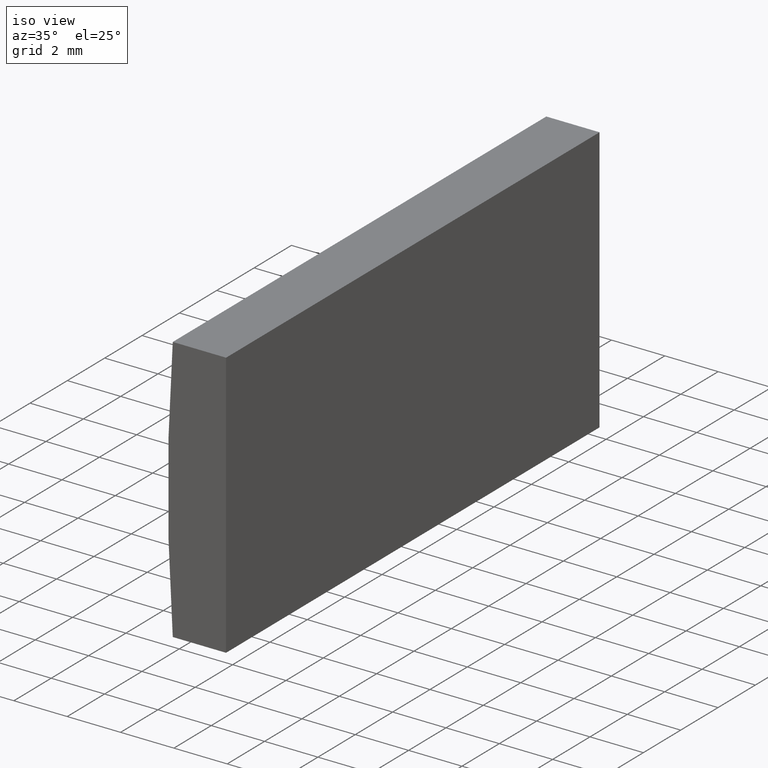
[diagram: clean part render]
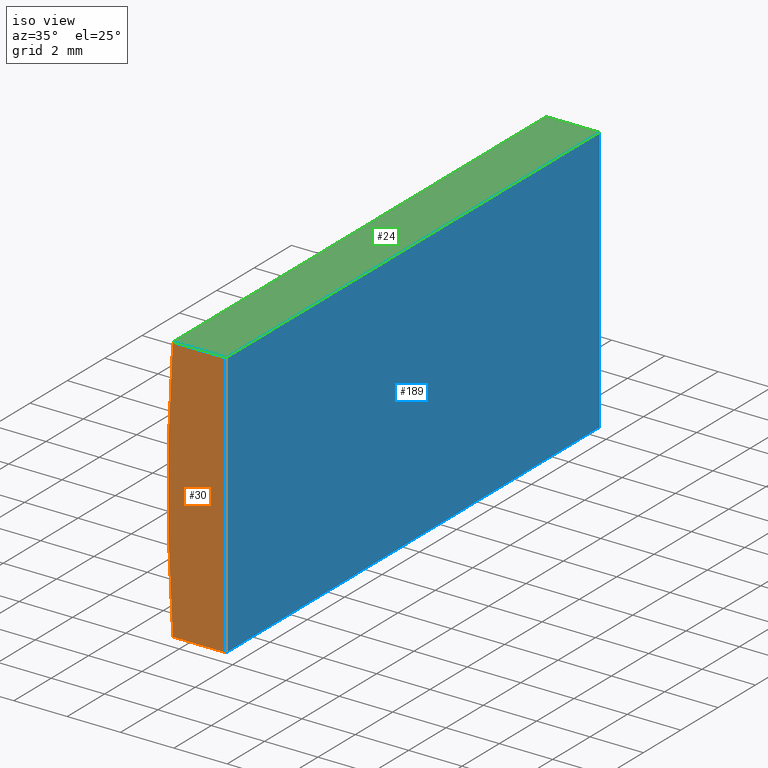
[diagram: same view with three faces highlighted in distinct colors, each labeled with its STEP entity id]
A machine part, iso view with three faces highlighted in distinct colors.
Their STEP definitions:

[orange] entity #30 — the highlighted planar face has unit normal (0, 1, 0).
#3 = CARTESIAN_POINT ( 'NONE',  ( -62.24479566514875000, 0.0000000000000000000, 5.000000000000000000 ) ) ;
#6 = DIRECTION ( 'NONE',  ( -1.000000000000000000, -0.0000000000000000000, 8.682211121010675500E-016 ) ) ;
#9 = AXIS2_PLACEMENT_3D ( 'NONE', #69, #173, #154 ) ;
#11 = VECTOR ( 'NONE', #160, 1000.000000000000000 ) ;
#14 = DIRECTION ( 'NONE',  ( 0.0000000000000000000, -0.0000000000000000000, 1.000000000000000000 ) ) ;
#17 = VECTOR ( 'NONE', #6, 1000.000000000000000 ) ;
#18 = CARTESIAN_POINT ( 'NONE',  ( -62.24479566514875000, 0.0000000000000000000, -5.000000000000001800 ) ) ;
#19 = LINE ( 'NONE', #131, #17 ) ;
#25 = VERTEX_POINT ( 'NONE', #3 ) ;
#30 = ADVANCED_FACE ( 'NONE', ( #145 ), #48, .F. ) ;
#31 = DIRECTION ( 'NONE',  ( 1.000000000000000000, 0.0000000000000000000, 0.0000000000000000000 ) ) ;
#39 = CARTESIAN_POINT ( 'NONE',  ( -64.24281604474863600, 0.0000000000000000000, 5.000000000000000000 ) ) ;
#40 = LINE ( 'NONE', #165, #184 ) ;
#48 = PLANE ( 'NONE',  #203 ) ;
#52 = ORIENTED_EDGE ( 'NONE', *, *, #87, .F. ) ;
#69 = CARTESIAN_POINT ( 'NONE',  ( 4.355204334851265500, 0.0000000000000000000, 4.286263797015675000E-017 ) ) ;
#86 = ORIENTED_EDGE ( 'NONE', *, *, #151, .F. ) ;
#87 = EDGE_CURVE ( 'NONE', #99, #25, #40, .T. ) ;
#90 = EDGE_CURVE ( 'NONE', #25, #123, #170, .T. ) ;
#92 = DIRECTION ( 'NONE',  ( 0.0000000000000000000, 1.000000000000000000, 0.0000000000000000000 ) ) ;
#99 = VERTEX_POINT ( 'NONE', #39 ) ;
#112 = CIRCLE ( 'NONE', #9, 68.78000000000000100 ) ;
#115 = ORIENTED_EDGE ( 'NONE', *, *, #172, .F. ) ;
#123 = VERTEX_POINT ( 'NONE', #197 ) ;
#131 = CARTESIAN_POINT ( 'NONE',  ( -64.24281604474863600, 0.0000000000000000000, -5.000000000000000000 ) ) ;
#133 = CARTESIAN_POINT ( 'NONE',  ( -64.24281604474863600, 0.0000000000000000000, -5.000000000000000000 ) ) ;
#145 = FACE_OUTER_BOUND ( 'NONE', #178, .T. ) ;
#151 = EDGE_CURVE ( 'NONE', #161, #99, #112, .T. ) ;
#154 = DIRECTION ( 'NONE',  ( 0.0000000000000000000, 0.0000000000000000000, 1.000000000000000000 ) ) ;
#160 = DIRECTION ( 'NONE',  ( -0.0000000000000000000, -0.0000000000000000000, -1.000000000000000000 ) ) ;
#161 = VERTEX_POINT ( 'NONE', #133 ) ;
#165 = CARTESIAN_POINT ( 'NONE',  ( -64.24281604474863600, 0.0000000000000000000, 5.000000000000000000 ) ) ;
#169 = ORIENTED_EDGE ( 'NONE', *, *, #90, .F. ) ;
#170 = LINE ( 'NONE', #18, #11 ) ;
#172 = EDGE_CURVE ( 'NONE', #123, #161, #19, .T. ) ;
#173 = DIRECTION ( 'NONE',  ( 0.0000000000000000000, 1.000000000000000000, 0.0000000000000000000 ) ) ;
#178 = EDGE_LOOP ( 'NONE', ( #86, #115, #169, #52 ) ) ;
#184 = VECTOR ( 'NONE', #31, 1000.000000000000000 ) ;
#195 = CARTESIAN_POINT ( 'NONE',  ( 4.355204334851265500, 0.0000000000000000000, 4.286263797015675000E-017 ) ) ;
#197 = CARTESIAN_POINT ( 'NONE',  ( -62.24479566514875000, 0.0000000000000000000, -5.000000000000001800 ) ) ;
#203 = AXIS2_PLACEMENT_3D ( 'NONE', #195, #92, #14 ) ;

[blue] entity #189 — the highlighted planar face has unit normal (-1, 0, 0).
#3 = CARTESIAN_POINT ( 'NONE',  ( -62.24479566514875000, 0.0000000000000000000, 5.000000000000000000 ) ) ;
#5 = DIRECTION ( 'NONE',  ( 0.0000000000000000000, 0.0000000000000000000, 1.000000000000000000 ) ) ;
#7 = DIRECTION ( 'NONE',  ( -0.0000000000000000000, -0.0000000000000000000, -1.000000000000000000 ) ) ;
#10 = LINE ( 'NONE', #61, #32 ) ;
#11 = VECTOR ( 'NONE', #160, 1000.000000000000000 ) ;
#16 = EDGE_CURVE ( 'NONE', #162, #123, #198, .T. ) ;
#18 = CARTESIAN_POINT ( 'NONE',  ( -62.24479566514875000, 0.0000000000000000000, -5.000000000000001800 ) ) ;
#23 = ORIENTED_EDGE ( 'NONE', *, *, #64, .T. ) ;
#25 = VERTEX_POINT ( 'NONE', #3 ) ;
#32 = VECTOR ( 'NONE', #59, 1000.000000000000000 ) ;
#34 = CARTESIAN_POINT ( 'NONE',  ( -62.24479566514875000, 20.00000000000000000, -5.000000000000001800 ) ) ;
#59 = DIRECTION ( 'NONE',  ( -0.0000000000000000000, -1.000000000000000000, -0.0000000000000000000 ) ) ;
#60 = EDGE_LOOP ( 'NONE', ( #204, #114, #202, #23 ) ) ;
#61 = CARTESIAN_POINT ( 'NONE',  ( -62.24479566514875000, 20.00000000000000000, 5.000000000000000000 ) ) ;
#64 = EDGE_CURVE ( 'NONE', #126, #25, #10, .T. ) ;
#65 = LINE ( 'NONE', #82, #105 ) ;
#77 = CARTESIAN_POINT ( 'NONE',  ( -62.24479566514875000, 20.00000000000000000, -5.000000000000001800 ) ) ;
#82 = CARTESIAN_POINT ( 'NONE',  ( -62.24479566514875000, 20.00000000000000000, -5.000000000000001800 ) ) ;
#85 = CARTESIAN_POINT ( 'NONE',  ( -62.24479566514875000, 20.00000000000000000, -5.000000000000001800 ) ) ;
#89 = DIRECTION ( 'NONE',  ( -1.000000000000000000, 0.0000000000000000000, 0.0000000000000000000 ) ) ;
#90 = EDGE_CURVE ( 'NONE', #25, #123, #170, .T. ) ;
#94 = AXIS2_PLACEMENT_3D ( 'NONE', #77, #89, #5 ) ;
#105 = VECTOR ( 'NONE', #7, 1000.000000000000000 ) ;
#111 = VECTOR ( 'NONE', #135, 1000.000000000000000 ) ;
#114 = ORIENTED_EDGE ( 'NONE', *, *, #16, .F. ) ;
#123 = VERTEX_POINT ( 'NONE', #197 ) ;
#124 = PLANE ( 'NONE',  #94 ) ;
#126 = VERTEX_POINT ( 'NONE', #159 ) ;
#135 = DIRECTION ( 'NONE',  ( -0.0000000000000000000, -1.000000000000000000, -0.0000000000000000000 ) ) ;
#159 = CARTESIAN_POINT ( 'NONE',  ( -62.24479566514875000, 20.00000000000000000, 5.000000000000000000 ) ) ;
#160 = DIRECTION ( 'NONE',  ( -0.0000000000000000000, -0.0000000000000000000, -1.000000000000000000 ) ) ;
#162 = VERTEX_POINT ( 'NONE', #34 ) ;
#170 = LINE ( 'NONE', #18, #11 ) ;
#175 = FACE_OUTER_BOUND ( 'NONE', #60, .T. ) ;
#186 = EDGE_CURVE ( 'NONE', #126, #162, #65, .T. ) ;
#189 = ADVANCED_FACE ( 'NONE', ( #175 ), #124, .F. ) ;
#197 = CARTESIAN_POINT ( 'NONE',  ( -62.24479566514875000, 0.0000000000000000000, -5.000000000000001800 ) ) ;
#198 = LINE ( 'NONE', #85, #111 ) ;
#202 = ORIENTED_EDGE ( 'NONE', *, *, #186, .F. ) ;
#204 = ORIENTED_EDGE ( 'NONE', *, *, #90, .T. ) ;

[green] entity #24 — the highlighted planar face has unit normal (0, 0, -1).
#1 = CARTESIAN_POINT ( 'NONE',  ( -64.24281604474863600, 20.00000000000000000, 5.000000000000000000 ) ) ;
#2 = LINE ( 'NONE', #107, #136 ) ;
#3 = CARTESIAN_POINT ( 'NONE',  ( -62.24479566514875000, 0.0000000000000000000, 5.000000000000000000 ) ) ;
#10 = LINE ( 'NONE', #61, #32 ) ;
#12 = EDGE_CURVE ( 'NONE', #181, #126, #118, .T. ) ;
#24 = ADVANCED_FACE ( 'NONE', ( #190 ), #152, .F. ) ;
#25 = VERTEX_POINT ( 'NONE', #3 ) ;
#28 = DIRECTION ( 'NONE',  ( -1.000000000000000000, 0.0000000000000000000, -0.0000000000000000000 ) ) ;
#31 = DIRECTION ( 'NONE',  ( 1.000000000000000000, 0.0000000000000000000, 0.0000000000000000000 ) ) ;
#32 = VECTOR ( 'NONE', #59, 1000.000000000000000 ) ;
#39 = CARTESIAN_POINT ( 'NONE',  ( -64.24281604474863600, 0.0000000000000000000, 5.000000000000000000 ) ) ;
#40 = LINE ( 'NONE', #165, #184 ) ;
#41 = DIRECTION ( 'NONE',  ( 0.0000000000000000000, 0.0000000000000000000, -1.000000000000000000 ) ) ;
#44 = VECTOR ( 'NONE', #91, 1000.000000000000000 ) ;
#45 = ORIENTED_EDGE ( 'NONE', *, *, #113, .T. ) ;
#53 = CARTESIAN_POINT ( 'NONE',  ( -64.24281604474863600, 20.00000000000000000, 5.000000000000000000 ) ) ;
#57 = DIRECTION ( 'NONE',  ( -0.0000000000000000000, -1.000000000000000000, -0.0000000000000000000 ) ) ;
#59 = DIRECTION ( 'NONE',  ( -0.0000000000000000000, -1.000000000000000000, -0.0000000000000000000 ) ) ;
#61 = CARTESIAN_POINT ( 'NONE',  ( -62.24479566514875000, 20.00000000000000000, 5.000000000000000000 ) ) ;
#64 = EDGE_CURVE ( 'NONE', #126, #25, #10, .T. ) ;
#87 = EDGE_CURVE ( 'NONE', #99, #25, #40, .T. ) ;
#91 = DIRECTION ( 'NONE',  ( 1.000000000000000000, 0.0000000000000000000, 0.0000000000000000000 ) ) ;
#99 = VERTEX_POINT ( 'NONE', #39 ) ;
#107 = CARTESIAN_POINT ( 'NONE',  ( -64.24281604474863600, 20.00000000000000000, 5.000000000000000000 ) ) ;
#113 = EDGE_CURVE ( 'NONE', #181, #99, #2, .T. ) ;
#118 = LINE ( 'NONE', #53, #44 ) ;
#126 = VERTEX_POINT ( 'NONE', #159 ) ;
#136 = VECTOR ( 'NONE', #57, 1000.000000000000000 ) ;
#138 = CARTESIAN_POINT ( 'NONE',  ( -64.24281604474863600, 20.00000000000000000, 5.000000000000000000 ) ) ;
#139 = ORIENTED_EDGE ( 'NONE', *, *, #87, .T. ) ;
#141 = AXIS2_PLACEMENT_3D ( 'NONE', #138, #41, #28 ) ;
#148 = ORIENTED_EDGE ( 'NONE', *, *, #64, .F. ) ;
#152 = PLANE ( 'NONE',  #141 ) ;
#157 = EDGE_LOOP ( 'NONE', ( #139, #148, #201, #45 ) ) ;
#159 = CARTESIAN_POINT ( 'NONE',  ( -62.24479566514875000, 20.00000000000000000, 5.000000000000000000 ) ) ;
#165 = CARTESIAN_POINT ( 'NONE',  ( -64.24281604474863600, 0.0000000000000000000, 5.000000000000000000 ) ) ;
#181 = VERTEX_POINT ( 'NONE', #1 ) ;
#184 = VECTOR ( 'NONE', #31, 1000.000000000000000 ) ;
#190 = FACE_OUTER_BOUND ( 'NONE', #157, .T. ) ;
#201 = ORIENTED_EDGE ( 'NONE', *, *, #12, .F. ) ;